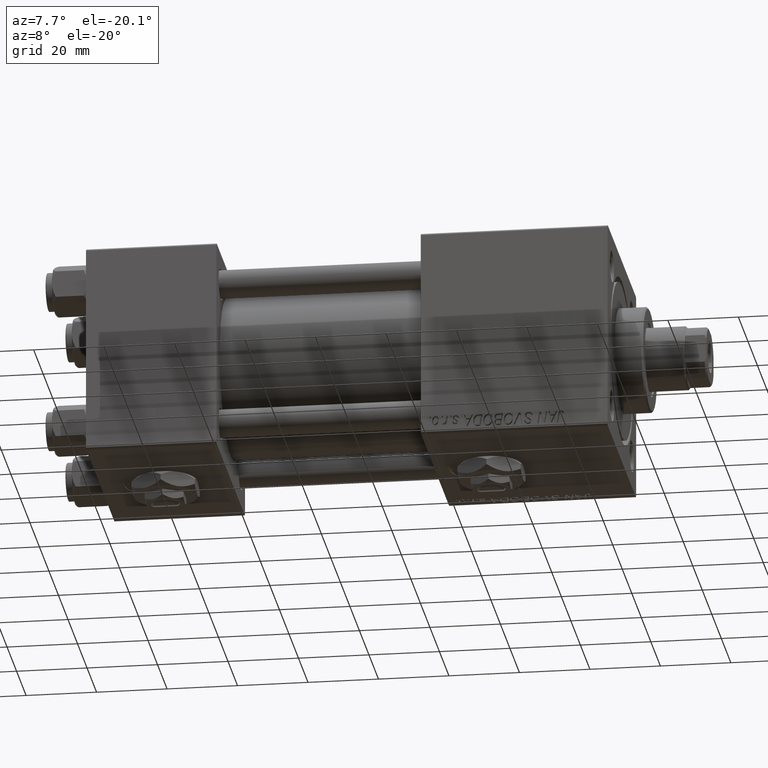
[diagram: clean part render]
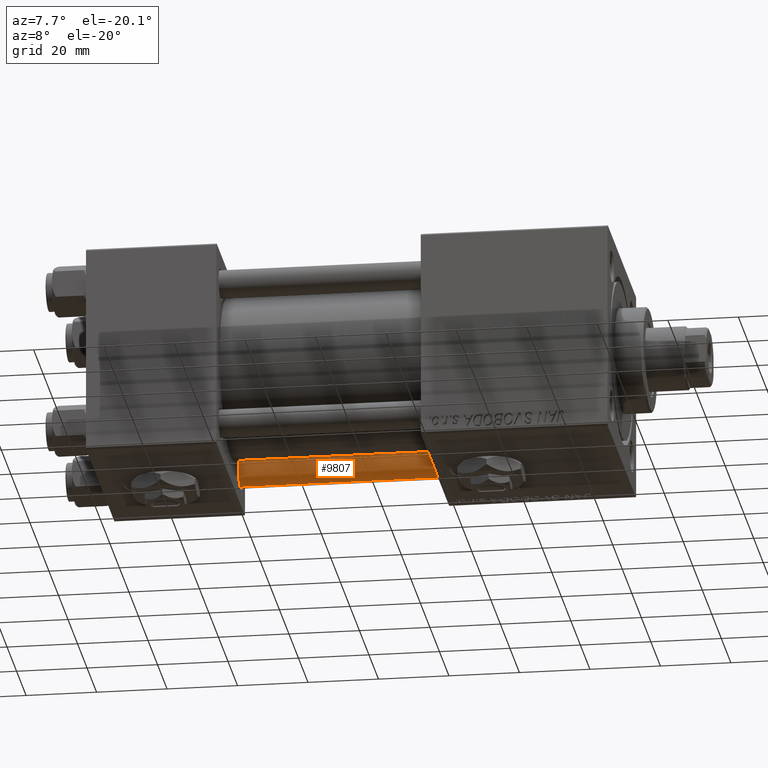
[diagram: same view with one face highlighted and labeled with its STEP entity id]
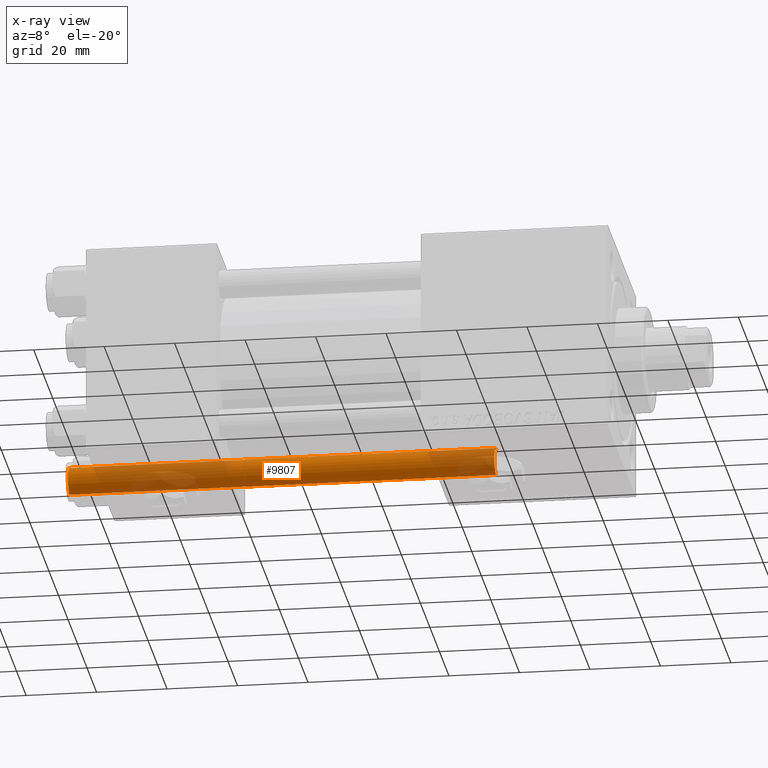
[diagram: x-ray of the same camera — body ghosted, the highlighted face saturated]
A machine part, auxiliary view. The second image highlights one B-rep face of the part: STEP entity #9807.
The next image is the same camera in x-ray: the body ghosted, the highlighted face saturated — about 37% of this face is hidden behind the body in this view.
In plain terms, the highlighted cylindrical surface (edge-blend (fillet) strip) has radius 4 mm, axis along (1, -0, 0).
Its self-contained STEP definition (entity closure, byte-faithful):
#833 = ORIENTED_EDGE ( 'NONE', *, *, #39946, .T. ) ;
#1111 = VECTOR ( 'NONE', #20841, 1000.000000000000000 ) ;
#8215 = CARTESIAN_POINT ( 'NONE',  ( -4.000000000000000000, 0.000000000000000000, 0.5000000000000559552 ) ) ;
#9277 = ORIENTED_EDGE ( 'NONE', *, *, #23814, .T. ) ;
#9807 = ADVANCED_FACE ( 'NONE', ( #38359 ), #18007, .T. ) ;
#11028 = ORIENTED_EDGE ( 'NONE', *, *, #40243, .F. ) ;
#13136 = DIRECTION ( 'NONE',  ( 0.000000000000000000, 0.000000000000000000, -1.000000000000000000 ) ) ;
#14177 = VERTEX_POINT ( 'NONE', #50932 ) ;
#15078 = DIRECTION ( 'NONE',  ( -0.000000000000000000, -0.000000000000000000, -1.000000000000000000 ) ) ;
#15213 = CARTESIAN_POINT ( 'NONE',  ( -4.000000000000000000, 0.000000000000000000, 121.5000000000000426 ) ) ;
#18007 = CYLINDRICAL_SURFACE ( 'NONE', #46236, 4.000000000000000000 ) ;
#18646 = CIRCLE ( 'NONE', #25397, 4.000000000000000000 ) ;
#20841 = DIRECTION ( 'NONE',  ( -0.000000000000000000, -0.000000000000000000, -1.000000000000000000 ) ) ;
#21704 = CARTESIAN_POINT ( 'NONE',  ( 0.000000000000000000, 0.000000000000000000, 0.5000000000000559552 ) ) ;
#22855 = EDGE_CURVE ( 'NONE', #25615, #42511, #25063, .T. ) ;
#22898 = VERTEX_POINT ( 'NONE', #41186 ) ;
#23011 = CARTESIAN_POINT ( 'NONE',  ( 4.000000000000000000, 4.898587196589411843E-16, 122.0000000000000000 ) ) ;
#23278 = LINE ( 'NONE', #23011, #44783 ) ;
#23814 = EDGE_CURVE ( 'NONE', #42511, #22898, #32263, .T. ) ;
#25063 = LINE ( 'NONE', #29563, #1111 ) ;
#25397 = AXIS2_PLACEMENT_3D ( 'NONE', #49345, #13136, #29259 ) ;
#25615 = VERTEX_POINT ( 'NONE', #15213 ) ;
#26472 = DIRECTION ( 'NONE',  ( -0.000000000000000000, -0.000000000000000000, -1.000000000000000000 ) ) ;
#29259 = DIRECTION ( 'NONE',  ( 1.000000000000000000, 0.000000000000000000, 0.000000000000000000 ) ) ;
#29563 = CARTESIAN_POINT ( 'NONE',  ( -4.000000000000000000, 0.000000000000000000, 122.0000000000000000 ) ) ;
#29919 = CARTESIAN_POINT ( 'NONE',  ( 0.000000000000000000, 0.000000000000000000, 122.0000000000000000 ) ) ;
#32263 = CIRCLE ( 'NONE', #39019, 4.000000000000000000 ) ;
#34122 = DIRECTION ( 'NONE',  ( -0.000000000000000000, -0.000000000000000000, 1.000000000000000000 ) ) ;
#38359 = FACE_OUTER_BOUND ( 'NONE', #45625, .T. ) ;
#39019 = AXIS2_PLACEMENT_3D ( 'NONE', #21704, #34122, #50250 ) ;
#39946 = EDGE_CURVE ( 'NONE', #14177, #25615, #18646, .T. ) ;
#40243 = EDGE_CURVE ( 'NONE', #14177, #22898, #23278, .T. ) ;
#40682 = ORIENTED_EDGE ( 'NONE', *, *, #22855, .T. ) ;
#41186 = CARTESIAN_POINT ( 'NONE',  ( 4.000000000000000000, 4.898587196589411843E-16, 0.5000000000000559552 ) ) ;
#42511 = VERTEX_POINT ( 'NONE', #8215 ) ;
#44783 = VECTOR ( 'NONE', #15078, 1000.000000000000000 ) ;
#45625 = EDGE_LOOP ( 'NONE', ( #11028, #833, #40682, #9277 ) ) ;
#46236 = AXIS2_PLACEMENT_3D ( 'NONE', #29919, #26472, #46817 ) ;
#46817 = DIRECTION ( 'NONE',  ( -1.000000000000000000, 0.000000000000000000, 0.000000000000000000 ) ) ;
#49345 = CARTESIAN_POINT ( 'NONE',  ( 0.000000000000000000, 0.000000000000000000, 121.5000000000000426 ) ) ;
#50250 = DIRECTION ( 'NONE',  ( 1.000000000000000000, 0.000000000000000000, 0.000000000000000000 ) ) ;
#50932 = CARTESIAN_POINT ( 'NONE',  ( 4.000000000000000000, 4.898587196589411843E-16, 121.5000000000000426 ) ) ;